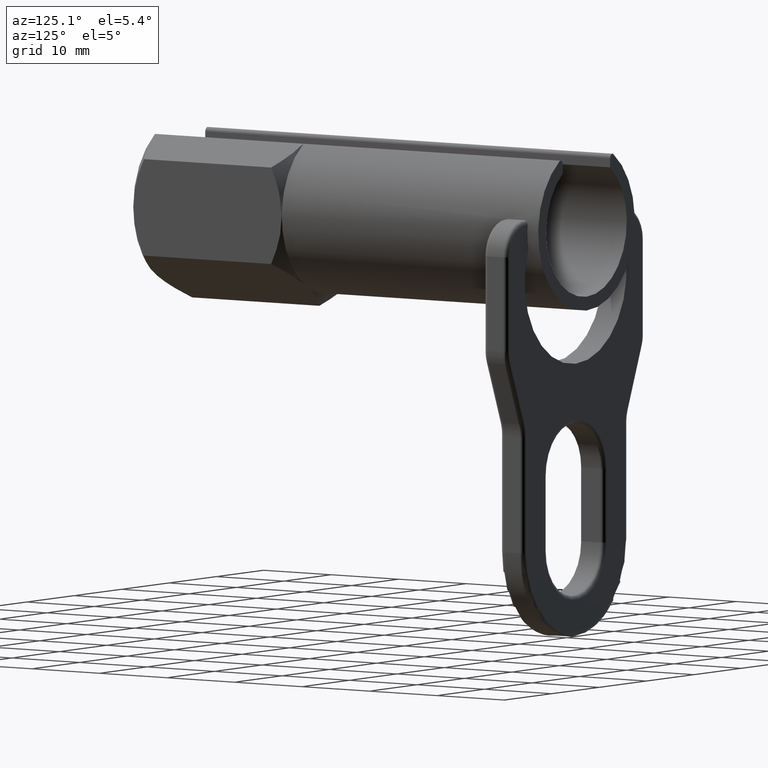
[diagram: clean part render]
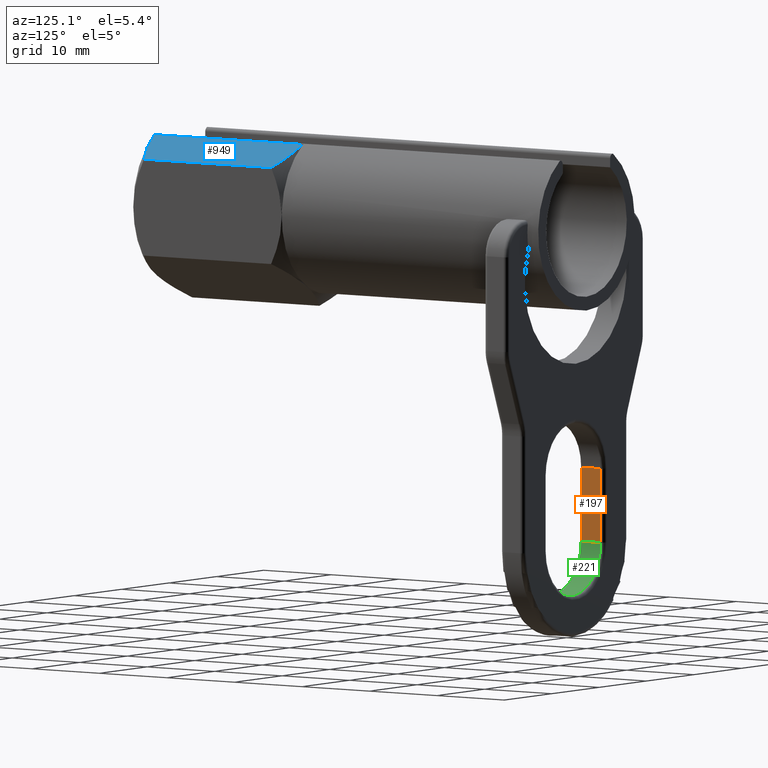
[diagram: same view with three faces highlighted in distinct colors, each labeled with its STEP entity id]
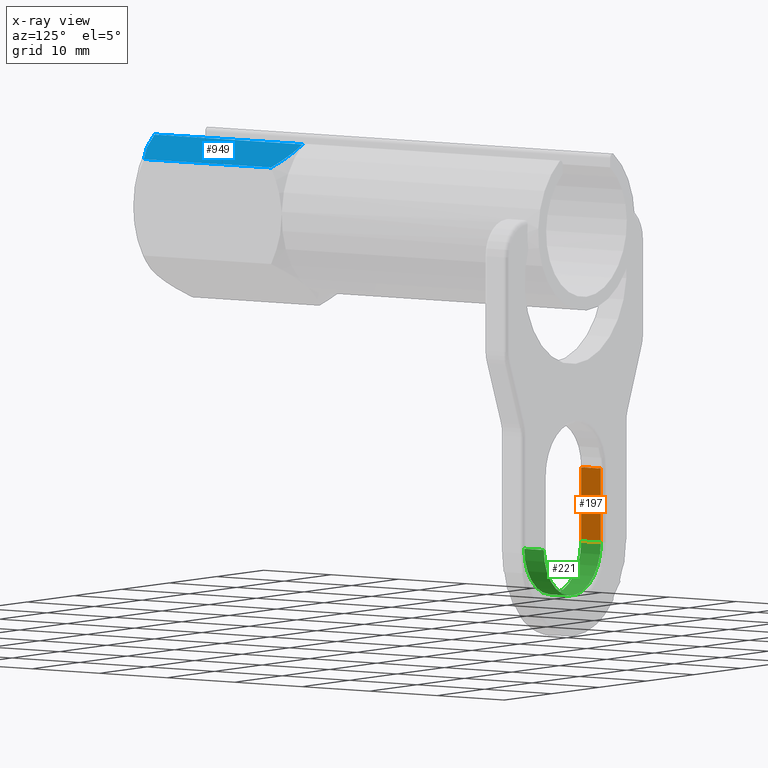
[diagram: x-ray of the same camera — body ghosted, the three highlighted faces saturated]
A machine part, auxiliary view with three faces highlighted in distinct colors.
The next image is the same camera in x-ray (body ghosted, the three faces saturated) — at least one of them is partly hidden behind the body in this view.
Their STEP definitions:

[orange] entity #197 — the highlighted planar face has unit normal (1, 0, 0).
#150 = VERTEX_POINT ( 'NONE', #1231 ) ;
#152 = EDGE_CURVE ( 'NONE', #826, #150, #1230, .T. ) ;
#195 = EDGE_CURVE ( 'NONE', #829, #585, #1284, .T. ) ;
#197 = ADVANCED_FACE ( 'NONE', ( #1276 ), #1275, .T. ) ;
#198 = EDGE_LOOP ( 'NONE', ( #199, #200, #202, #203 ) ) ;
#199 = ORIENTED_EDGE ( 'NONE', *, *, #152, .T. ) ;
#200 = ORIENTED_EDGE ( 'NONE', *, *, #201, .T. ) ;
#201 = EDGE_CURVE ( 'NONE', #150, #585, #1270, .T. ) ;
#202 = ORIENTED_EDGE ( 'NONE', *, *, #195, .F. ) ;
#203 = ORIENTED_EDGE ( 'NONE', *, *, #828, .F. ) ;
#585 = VERTEX_POINT ( 'NONE', #1861 ) ;
#826 = VERTEX_POINT ( 'NONE', #2353 ) ;
#828 = EDGE_CURVE ( 'NONE', #826, #829, #2415, .T. ) ;
#829 = VERTEX_POINT ( 'NONE', #2411 ) ;
#1227 = DIRECTION ( 'NONE',  ( 0.0000000000000000000, 1.000000000000000000, 0.0000000000000000000 ) ) ;
#1228 = VECTOR ( 'NONE', #1227, 1000.000000000000000 ) ;
#1229 = CARTESIAN_POINT ( 'NONE',  ( -6.000000000000000000, -0.001000000000001000100, -39.00000000000000000 ) ) ;
#1230 = LINE ( 'NONE', #1229, #1228 ) ;
#1231 = CARTESIAN_POINT ( 'NONE',  ( -6.000000000000000000, 57.89999999999999900, -39.00000000000000000 ) ) ;
#1270 = LINE ( 'NONE', #1336, #1335 ) ;
#1271 = DIRECTION ( 'NONE',  ( 0.0000000000000000000, 0.0000000000000000000, -1.000000000000000000 ) ) ;
#1272 = DIRECTION ( 'NONE',  ( 1.000000000000000000, 0.0000000000000000000, 0.0000000000000000000 ) ) ;
#1273 = CARTESIAN_POINT ( 'NONE',  ( -6.000000000000000000, -0.001000000000001000100, -39.00000000000000000 ) ) ;
#1274 = AXIS2_PLACEMENT_3D ( 'NONE', #1273, #1272, #1271 ) ;
#1275 = PLANE ( 'NONE',  #1274 ) ;
#1276 = FACE_OUTER_BOUND ( 'NONE', #198, .T. ) ;
#1277 = DIRECTION ( 'NONE',  ( 0.0000000000000000000, 1.000000000000000000, 0.0000000000000000000 ) ) ;
#1278 = VECTOR ( 'NONE', #1277, 1000.000000000000000 ) ;
#1279 = CARTESIAN_POINT ( 'NONE',  ( -6.000000000000000000, -0.001000000000001000100, -30.00000000000000000 ) ) ;
#1284 = LINE ( 'NONE', #1279, #1278 ) ;
#1334 = DIRECTION ( 'NONE',  ( 0.0000000000000000000, 0.0000000000000000000, 1.000000000000000000 ) ) ;
#1335 = VECTOR ( 'NONE', #1334, 1000.000000000000000 ) ;
#1336 = CARTESIAN_POINT ( 'NONE',  ( -6.000000000000000000, 57.89999999999999900, -39.00000000000000000 ) ) ;
#1861 = CARTESIAN_POINT ( 'NONE',  ( -6.000000000000000000, 57.89999999999999900, -30.00000000000000000 ) ) ;
#2353 = CARTESIAN_POINT ( 'NONE',  ( -6.000000000000000000, 55.00000000000000000, -39.00000000000000000 ) ) ;
#2411 = CARTESIAN_POINT ( 'NONE',  ( -6.000000000000000000, 55.00000000000000000, -30.00000000000000000 ) ) ;
#2412 = DIRECTION ( 'NONE',  ( 0.0000000000000000000, 0.0000000000000000000, 1.000000000000000000 ) ) ;
#2413 = VECTOR ( 'NONE', #2412, 1000.000000000000000 ) ;
#2414 = CARTESIAN_POINT ( 'NONE',  ( -6.000000000000000000, 55.00000000000000000, -39.00000000000000000 ) ) ;
#2415 = LINE ( 'NONE', #2414, #2413 ) ;

[blue] entity #949 — the highlighted planar face has unit normal (-0.5, 0, -0.866).
#16 = VERTEX_POINT ( 'NONE', #928 ) ;
#17 = ORIENTED_EDGE ( 'NONE', *, *, #18, .F. ) ;
#18 = EDGE_CURVE ( 'NONE', #879, #16, #927, .T. ) ;
#879 = VERTEX_POINT ( 'NONE', #2528 ) ;
#880 = EDGE_CURVE ( 'NONE', #16, #886, #2526, .T. ) ;
#881 = EDGE_CURVE ( 'NONE', #882, #879, #2506, .T. ) ;
#882 = VERTEX_POINT ( 'NONE', #2507 ) ;
#883 = ORIENTED_EDGE ( 'NONE', *, *, #884, .T. ) ;
#884 = EDGE_CURVE ( 'NONE', #882, #886, #2558, .T. ) ;
#885 = ORIENTED_EDGE ( 'NONE', *, *, #880, .F. ) ;
#886 = VERTEX_POINT ( 'NONE', #2554 ) ;
#889 = EDGE_LOOP ( 'NONE', ( #950, #883, #885, #17 ) ) ;
#924 = DIRECTION ( 'NONE',  ( 0.0000000000000000000, -1.000000000000000000, 0.0000000000000000000 ) ) ;
#925 = VECTOR ( 'NONE', #924, 1000.000000000000000 ) ;
#926 = CARTESIAN_POINT ( 'NONE',  ( 10.17579849446715200, 22.00000000000000000, 5.875000000000000000 ) ) ;
#927 = LINE ( 'NONE', #926, #925 ) ;
#928 = CARTESIAN_POINT ( 'NONE',  ( 10.17579849446715200, 1.574201505532840000, 5.875000000000000000 ) ) ;
#949 = ADVANCED_FACE ( 'NONE', ( #2610 ), #2609, .F. ) ;
#950 = ORIENTED_EDGE ( 'NONE', *, *, #881, .F. ) ;
#2504 = CARTESIAN_POINT ( 'NONE',  ( 6.135907677194617300, 21.93783484243484200, 8.207432050848991500 ) ) ;
#2505 = CARTESIAN_POINT ( 'NONE',  ( 5.750000000000003600, 21.97122015360694300, 8.430235952159646800 ) ) ;
#2506 = B_SPLINE_CURVE_WITH_KNOTS ( 'NONE', 3,
 ( #2505, #2504, #2564, #2563, #2562, #2561, #2560, #2559 ),
 .UNSPECIFIED., .F., .F.,
 ( 4, 2, 2, 4 ),
 ( 0.0008684896065067690300, 0.002206814619205640400, 0.003545139631904513200, 0.006221789657302255300 ),
 .UNSPECIFIED. ) ;
#2507 = CARTESIAN_POINT ( 'NONE',  ( 5.750000000000003600, 21.97122015360694300, 8.430235952159646800 ) ) ;
#2508 = CARTESIAN_POINT ( 'NONE',  ( 5.750000000000014200, 0.02867984639305772400, 8.430235952159641500 ) ) ;
#2509 = CARTESIAN_POINT ( 'NONE',  ( 6.537069191253403100, 0.09677009547797772700, 7.975821342718639100 ) ) ;
#2510 = CARTESIAN_POINT ( 'NONE',  ( 7.293343408310629900, 0.2829025194405610000, 7.539186219919471000 ) ) ;
#2511 = CARTESIAN_POINT ( 'NONE',  ( 8.762901375709146700, 0.8199568605418419100, 6.690736531852183000 ) ) ;
#2512 = CARTESIAN_POINT ( 'NONE',  ( 9.476320992016688600, 1.170357981200980800, 6.278843524331861700 ) ) ;
#2513 = CARTESIAN_POINT ( 'NONE',  ( 10.17579849446715200, 1.574201505532840000, 5.875000000000000000 ) ) ;
#2526 = B_SPLINE_CURVE_WITH_KNOTS ( 'NONE', 3,
 ( #2513, #2512, #2511, #2510, #2509, #2508 ),
 .UNSPECIFIED., .F., .F.,
 ( 4, 2, 4 ),
 ( 2.544312011329336700E-007, 0.002669782796762537800, 0.005339311162323945300 ),
 .UNSPECIFIED. ) ;
#2528 = CARTESIAN_POINT ( 'NONE',  ( 10.17579849446715200, 20.42569849446715600, 5.875000000000000900 ) ) ;
#2554 = CARTESIAN_POINT ( 'NONE',  ( 5.750000000000014200, 0.02867984639305772400, 8.430235952159641500 ) ) ;
#2555 = DIRECTION ( 'NONE',  ( 0.0000000000000000000, -1.000000000000000000, 0.0000000000000000000 ) ) ;
#2556 = VECTOR ( 'NONE', #2555, 1000.000000000000000 ) ;
#2557 = CARTESIAN_POINT ( 'NONE',  ( 5.750000000000003600, 22.00000000000000000, 8.430235952159646800 ) ) ;
#2558 = LINE ( 'NONE', #2557, #2556 ) ;
#2559 = CARTESIAN_POINT ( 'NONE',  ( 10.17579849446715200, 20.42569849446715600, 5.875000000000000900 ) ) ;
#2560 = CARTESIAN_POINT ( 'NONE',  ( 9.479777949690875600, 20.82754614335535600, 6.276847648888090000 ) ) ;
#2561 = CARTESIAN_POINT ( 'NONE',  ( 8.766573293896641400, 21.17878078922341000, 6.688616548898188800 ) ) ;
#2562 = CARTESIAN_POINT ( 'NONE',  ( 7.655640915514572600, 21.58450459937297300, 7.330013656608547200 ) ) ;
#2563 = CARTESIAN_POINT ( 'NONE',  ( 7.277633685564852700, 21.69925829563364400, 7.548256232575640800 ) ) ;
#2564 = CARTESIAN_POINT ( 'NONE',  ( 6.518485251773452800, 21.87563449235063500, 7.986550785179987100 ) ) ;
#2604 = DIRECTION ( 'NONE',  ( -0.8660254037844387100, 0.0000000000000000000, 0.4999999999999997200 ) ) ;
#2605 = DIRECTION ( 'NONE',  ( -0.4999999999999997800, 0.0000000000000000000, -0.8660254037844388200 ) ) ;
#2606 = CARTESIAN_POINT ( 'NONE',  ( 5.000000000000002700, 22.00000000000000000, 8.863248654051867300 ) ) ;
#2607 = AXIS2_PLACEMENT_3D ( 'NONE', #2606, #2605, #2604 ) ;
#2609 = PLANE ( 'NONE',  #2607 ) ;
#2610 = FACE_OUTER_BOUND ( 'NONE', #889, .T. ) ;

[green] entity #221 — the highlighted cylindrical surface (partial cylindrical patch) has radius 6 mm, axis along (0, 1, 0).
#144 = EDGE_LOOP ( 'NONE', ( #145, #148, #151, #153 ) ) ;
#145 = ORIENTED_EDGE ( 'NONE', *, *, #146, .T. ) ;
#146 = EDGE_CURVE ( 'NONE', #750, #147, #1177, .T. ) ;
#147 = VERTEX_POINT ( 'NONE', #1237 ) ;
#148 = ORIENTED_EDGE ( 'NONE', *, *, #149, .T. ) ;
#149 = EDGE_CURVE ( 'NONE', #147, #150, #1236, .T. ) ;
#150 = VERTEX_POINT ( 'NONE', #1231 ) ;
#151 = ORIENTED_EDGE ( 'NONE', *, *, #152, .F. ) ;
#152 = EDGE_CURVE ( 'NONE', #826, #150, #1230, .T. ) ;
#153 = ORIENTED_EDGE ( 'NONE', *, *, #749, .F. ) ;
#221 = ADVANCED_FACE ( 'NONE', ( #1310 ), #1309, .F. ) ;
#749 = EDGE_CURVE ( 'NONE', #750, #826, #2266, .T. ) ;
#750 = VERTEX_POINT ( 'NONE', #2262 ) ;
#826 = VERTEX_POINT ( 'NONE', #2353 ) ;
#1175 = VECTOR ( 'NONE', #1238, 1000.000000000000000 ) ;
#1176 = CARTESIAN_POINT ( 'NONE',  ( 6.000000000000000000, -0.001000000000001000100, -39.00000000000000000 ) ) ;
#1177 = LINE ( 'NONE', #1176, #1175 ) ;
#1227 = DIRECTION ( 'NONE',  ( 0.0000000000000000000, 1.000000000000000000, 0.0000000000000000000 ) ) ;
#1228 = VECTOR ( 'NONE', #1227, 1000.000000000000000 ) ;
#1229 = CARTESIAN_POINT ( 'NONE',  ( -6.000000000000000000, -0.001000000000001000100, -39.00000000000000000 ) ) ;
#1230 = LINE ( 'NONE', #1229, #1228 ) ;
#1231 = CARTESIAN_POINT ( 'NONE',  ( -6.000000000000000000, 57.89999999999999900, -39.00000000000000000 ) ) ;
#1232 = DIRECTION ( 'NONE',  ( 0.0000000000000000000, 0.0000000000000000000, 1.000000000000000000 ) ) ;
#1233 = DIRECTION ( 'NONE',  ( 0.0000000000000000000, 1.000000000000000000, 0.0000000000000000000 ) ) ;
#1234 = CARTESIAN_POINT ( 'NONE',  ( 0.0000000000000000000, 57.89999999999999900, -39.00000000000000000 ) ) ;
#1235 = AXIS2_PLACEMENT_3D ( 'NONE', #1234, #1233, #1232 ) ;
#1236 = CIRCLE ( 'NONE', #1235, 5.999999999999998200 ) ;
#1237 = CARTESIAN_POINT ( 'NONE',  ( 6.000000000000000000, 57.89999999999999900, -39.00000000000000000 ) ) ;
#1238 = DIRECTION ( 'NONE',  ( 0.0000000000000000000, 1.000000000000000000, 0.0000000000000000000 ) ) ;
#1305 = DIRECTION ( 'NONE',  ( 0.0000000000000000000, 0.0000000000000000000, 1.000000000000000000 ) ) ;
#1306 = DIRECTION ( 'NONE',  ( 0.0000000000000000000, 1.000000000000000000, 0.0000000000000000000 ) ) ;
#1307 = AXIS2_PLACEMENT_3D ( 'NONE', #1315, #1306, #1305 ) ;
#1309 = CYLINDRICAL_SURFACE ( 'NONE', #1307, 5.999999999999998200 ) ;
#1310 = FACE_OUTER_BOUND ( 'NONE', #144, .T. ) ;
#1315 = CARTESIAN_POINT ( 'NONE',  ( 0.0000000000000000000, -0.001000000000001000100, -39.00000000000000000 ) ) ;
#2204 = CARTESIAN_POINT ( 'NONE',  ( 0.0000000000000000000, 55.00000000000000000, -39.00000000000000000 ) ) ;
#2262 = CARTESIAN_POINT ( 'NONE',  ( 6.000000000000000000, 55.00000000000000000, -39.00000000000000000 ) ) ;
#2263 = DIRECTION ( 'NONE',  ( 0.0000000000000000000, 0.0000000000000000000, 1.000000000000000000 ) ) ;
#2264 = DIRECTION ( 'NONE',  ( 0.0000000000000000000, 1.000000000000000000, 0.0000000000000000000 ) ) ;
#2265 = AXIS2_PLACEMENT_3D ( 'NONE', #2204, #2264, #2263 ) ;
#2266 = CIRCLE ( 'NONE', #2265, 5.999999999999998200 ) ;
#2353 = CARTESIAN_POINT ( 'NONE',  ( -6.000000000000000000, 55.00000000000000000, -39.00000000000000000 ) ) ;